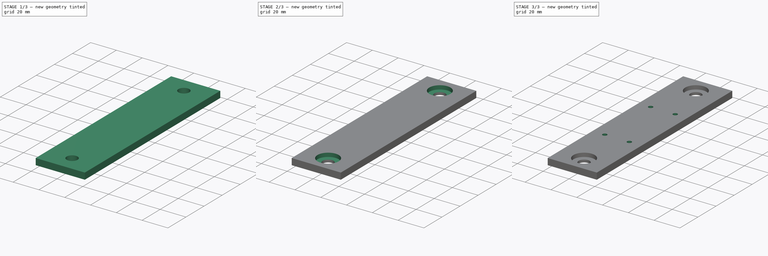
[diagram: build sequence overview — one tinted view per stage of 3, left to right]
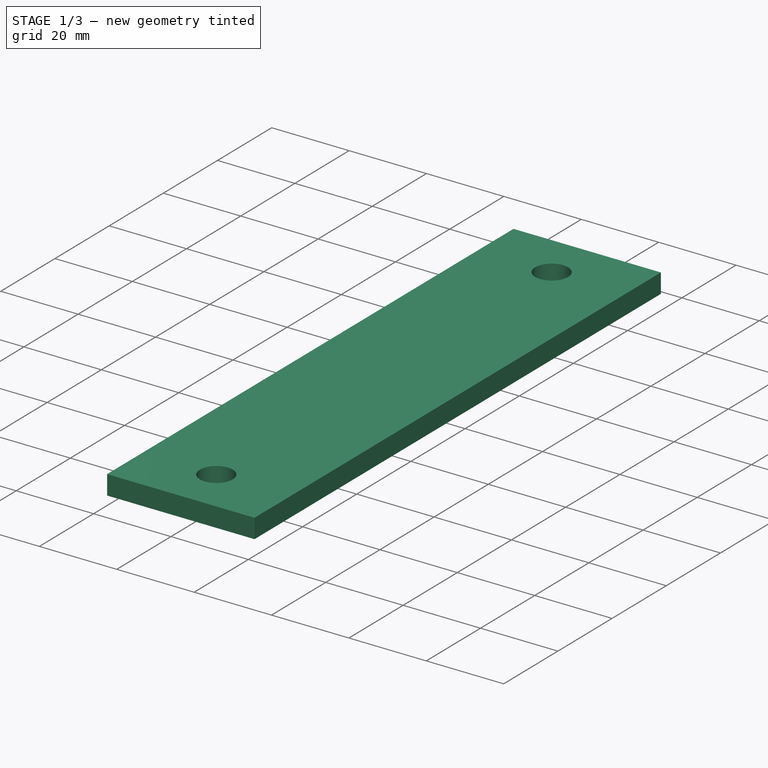
[diagram: stage 1 of 3 — iso view after this stage's code; geometry added in this stage tinted green]
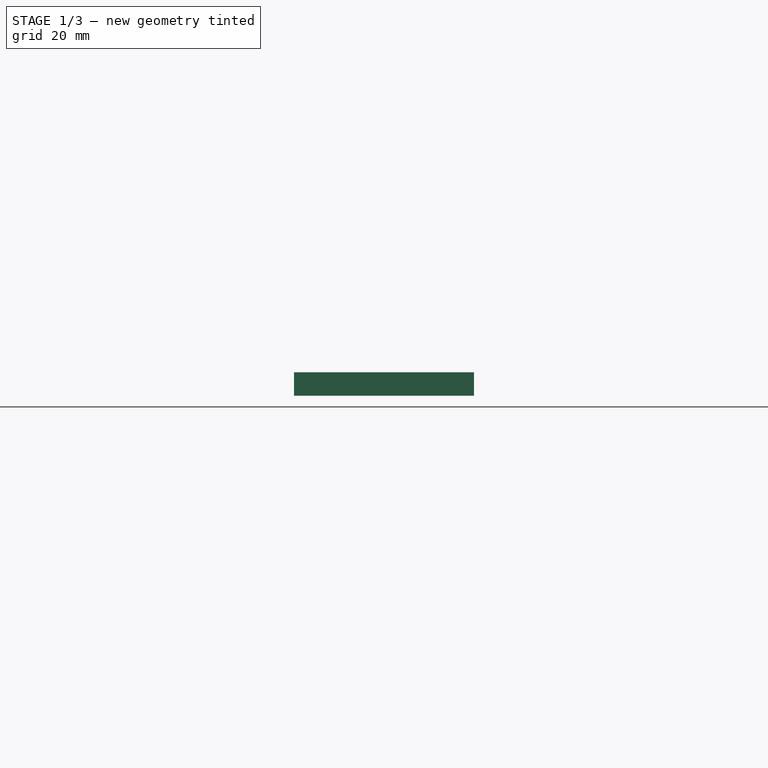
[diagram: stage 1 of 3 — front view after this stage's code; geometry added in this stage tinted green]
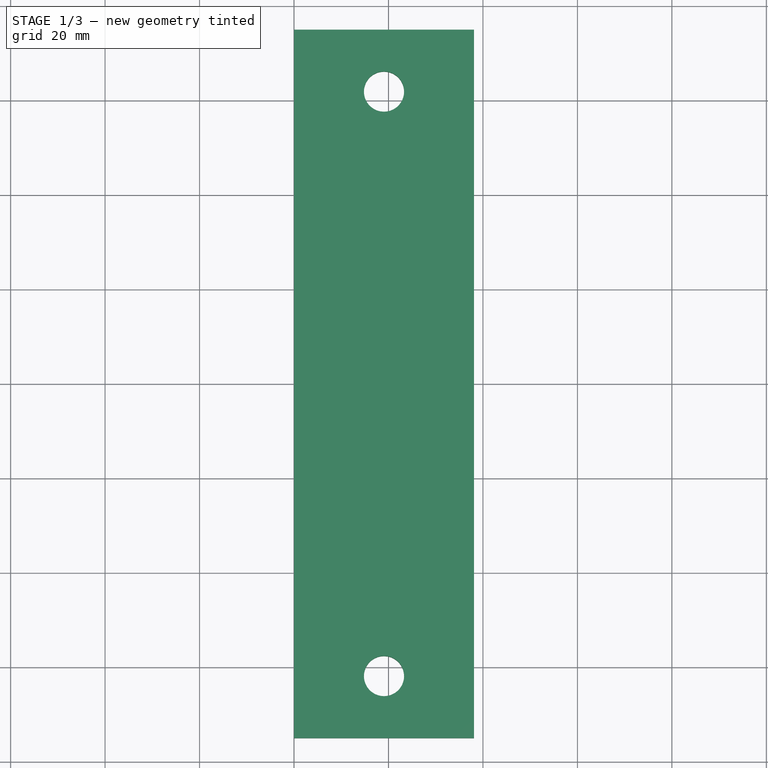
[diagram: stage 1 of 3 — top view after this stage's code; geometry added in this stage tinted green]
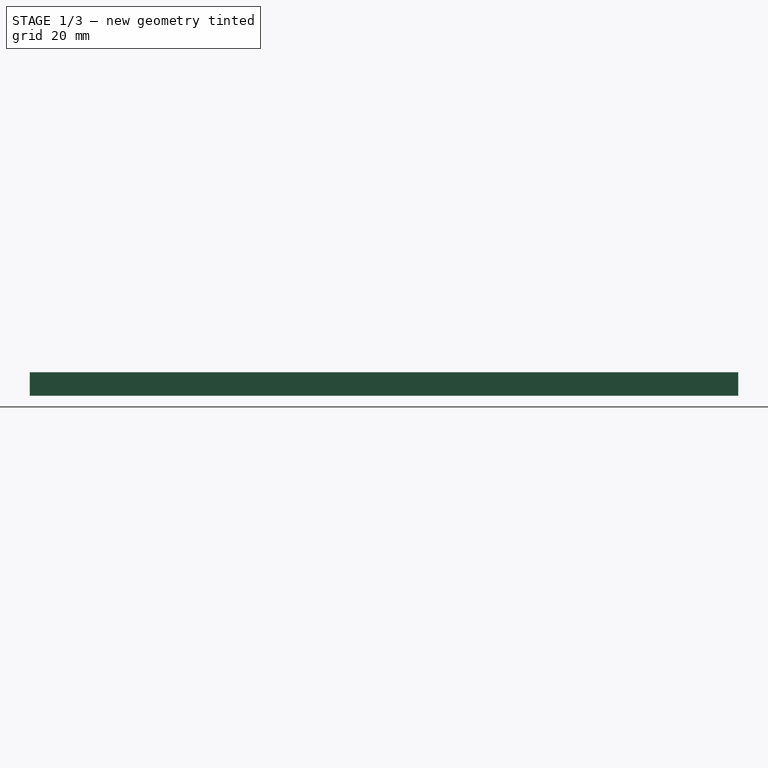
[diagram: stage 1 of 3 — right view after this stage's code; geometry added in this stage tinted green]
FCSTD DOCUMENT  (FreeCAD 0.18R)
Label: x-mount-base
License: All rights reserved
LicenseURL: http://en.wikipedia.org/wiki/All_rights_reserved
objects: Sketcher::SketchObject×5, PartDesign::Pocket×4, PartDesign::Pad×1, PartDesign::Body×1
note: 16 computed .brp shape members not serialized (recipe doc carries the construction recipe); baked Part::Feature solids carry a one-line shape summary decoded from their .brp

FEATURE [Sketcher::SketchObject] Sketch019
  MapMode = 5
  Support = -> [XY_Plane001]
  sketch-geometry (4):
    g0: Circle CenterX=9.525 CenterY=25.4 CenterZ=0 NormalX=0 NormalY=0 NormalZ=1 AngleXU=0 Radius=2.925
    g1: Circle CenterX=28.575 CenterY=25.4 CenterZ=0 NormalX=0 NormalY=0 NormalZ=1 AngleXU=0 Radius=2.925
    g2: Circle CenterX=9.525 CenterY=-25.4 CenterZ=0 NormalX=0 NormalY=0 NormalZ=1 AngleXU=0 Radius=2.925
    g3: Circle CenterX=28.575 CenterY=-25.4 CenterZ=0 NormalX=0 NormalY=0 NormalZ=1 AngleXU=0 Radius=2.925
  constraints (12):
    c: Diameter(g0) = 5.85
    c: Equal(g1,g0)
    c: Equal(g2,g0)
    c: Equal(g3,g0)
    c: DistanceY(g0,g1) = 0
    c: DistanceY(g2,g3) = 0
    c: DistanceX(g2,g0) = 0
    c: DistanceX(g3,g1) = 0
    c: DistanceY(g-1,g0) = 25.4
    c: DistanceY(g2,g-1) = 25.4
    c: DistanceX(g-1,g0) = 9.525
    c: DistanceX(g-1,g1) = 28.575
FEATURE [Sketcher::SketchObject] Sketch018
  MapMode = 5
  Support = -> [XY_Plane001]
  sketch-geometry (4):
    g0: Circle CenterX=9.525 CenterY=25.4 CenterZ=0 NormalX=0 NormalY=0 NormalZ=1 AngleXU=0 Radius=1.7
    g1: Circle CenterX=28.575 CenterY=25.4 CenterZ=0 NormalX=0 NormalY=0 NormalZ=1 AngleXU=0 Radius=1.7
    g2: Circle CenterX=9.525 CenterY=-25.4 CenterZ=0 NormalX=0 NormalY=0 NormalZ=1 AngleXU=0 Radius=1.7
    g3: Circle CenterX=28.575 CenterY=-25.4 CenterZ=0 NormalX=0 NormalY=0 NormalZ=1 AngleXU=0 Radius=1.7
  constraints (12):
    c: Diameter(g0) = 3.4
    c: Equal(g1,g0)
    c: Equal(g3,g0)
    c: Equal(g2,g0)
    c: DistanceY(g0,g1) = 0
    c: DistanceY(g2,g3) = 0
    c: DistanceX(g2,g0) = 0
    c: DistanceX(g3,g1) = 0
    c: DistanceX(g-1,g0) = 9.525
    c: DistanceX(g-1,g1) = 28.575
    c: DistanceY(g-1,g0) = 25.4
    c: DistanceY(g2,g-1) = 25.4
FEATURE [Sketcher::SketchObject] Sketch016
  MapMode = 5
  Support = -> [XY_Plane001]
  sketch-geometry (2):
    g0: Circle CenterX=19.05 CenterY=61.875 CenterZ=0 NormalX=0 NormalY=0 NormalZ=1 AngleXU=0 Radius=4.25
    g1: Circle CenterX=19.05 CenterY=-61.875 CenterZ=0 NormalX=0 NormalY=0 NormalZ=1 AngleXU=0 Radius=4.25
  constraints (6):
    c: DistanceX(g1,g0) = 0
    c: DistanceY(g-1,g0) = 61.875
    c: Radius(g0) = 4.25
    c: Equal(g1,g0)
    c: DistanceY(g1,g-1) = 61.875
    c: DistanceX(g-1,g1) = 19.05
FEATURE [Sketcher::SketchObject] Sketch015
  AttachmentOffset = pos=(0,0,75) rot=(0,0,1;0rad)
  MapMode = 5
  Placement = pos=(0,-75,-1.67e-14) rot=(1,0,0;1.5708rad)
  Support = -> [XZ_Plane001]
  sketch-geometry (4):
    g0: LineSegment StartX=0 StartY=0 StartZ=0 EndX=38.1 EndY=0 EndZ=0
    g1: LineSegment StartX=0 StartY=5 StartZ=0 EndX=38.1 EndY=5 EndZ=0
    g2: LineSegment StartX=0 StartY=0 StartZ=0 EndX=0 EndY=5 EndZ=0
    g3: LineSegment StartX=38.1 StartY=0 StartZ=0 EndX=38.1 EndY=5 EndZ=0
  constraints (11):
    c: Coincident(g0,g-1)
    c: Horizontal(g0)
    c: DistanceX(g0,g0) = 38.1
    c: Horizontal(g1)
    c: Coincident(g2,g0)
    c: Coincident(g3,g0)
    c: Vertical(g3)
    c: Vertical(g2)
    c: DistanceY(g2,g2) = 5
    c: Coincident(g1,g2)
    c: Coincident(g1,g3)
FEATURE [PartDesign::Pad] Pad002
  Length = 150
  Length2 = 100
  Placement = pos=(0,0,0) rot=(1,0,0;1.5708rad)
  Profile = -> Sketch015
  Reversed = true
  Type = 0
FEATURE [PartDesign::Pocket] Pocket004
  BaseFeature = -> Pad002
  Length = 5
  Length2 = 100
  Placement = pos=(0,0,0) rot=(1,0,0;1.5708rad)
  Profile = -> Sketch016
  Reversed = true
  Type = 1
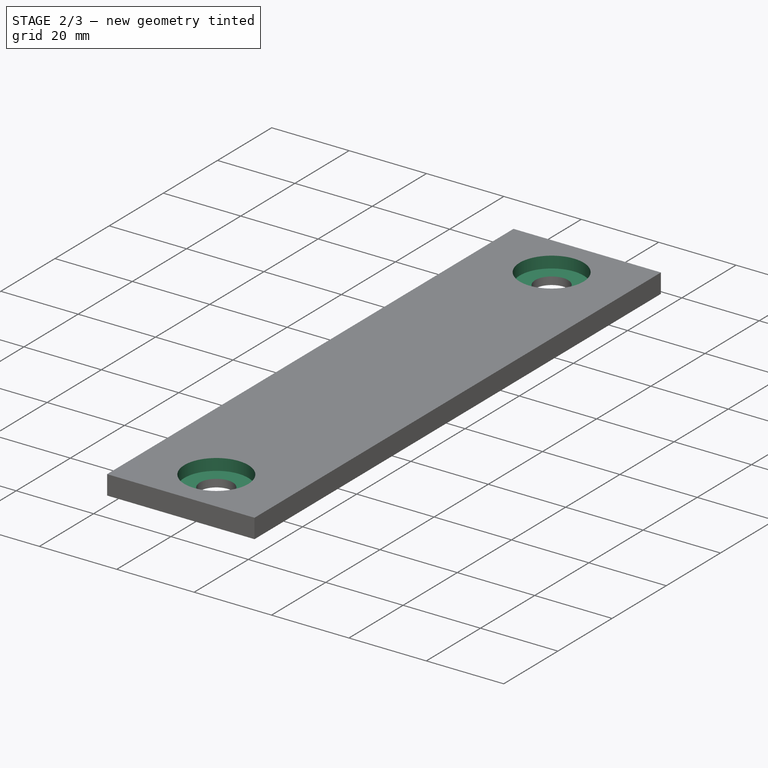
[diagram: stage 2 of 3 — iso view after this stage's code; geometry added in this stage tinted green]
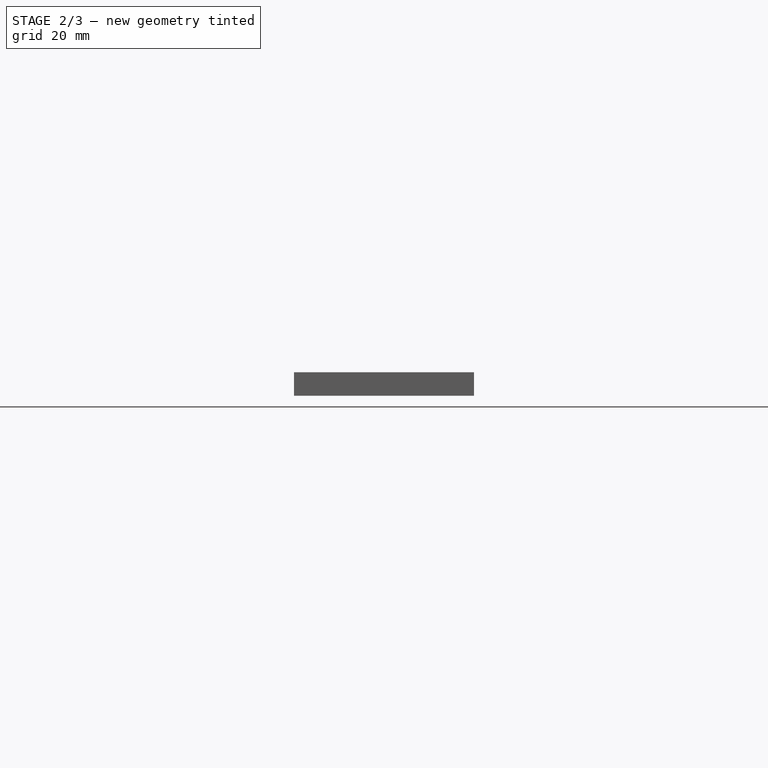
[diagram: stage 2 of 3 — front view after this stage's code; geometry added in this stage tinted green]
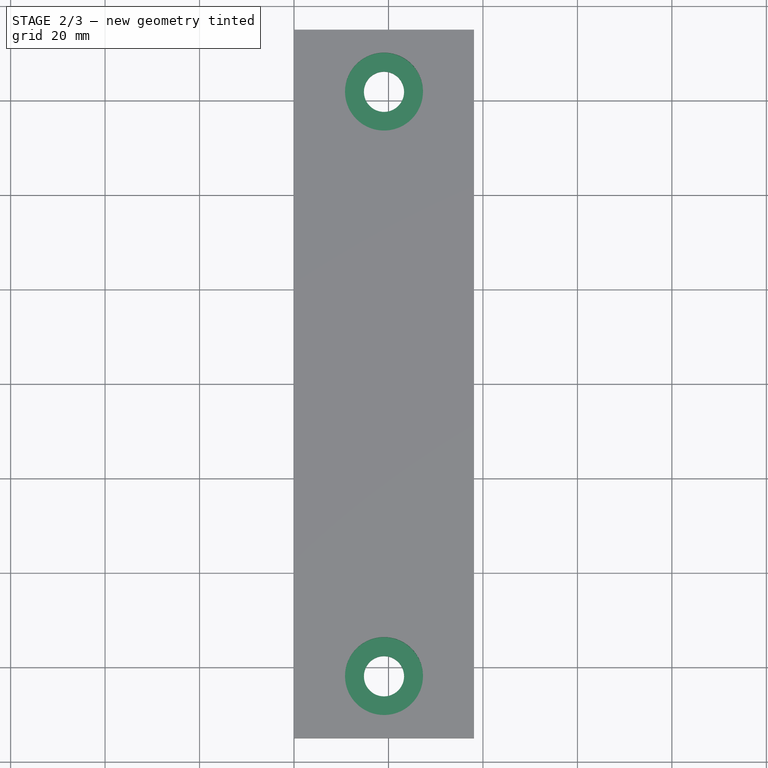
[diagram: stage 2 of 3 — top view after this stage's code; geometry added in this stage tinted green]
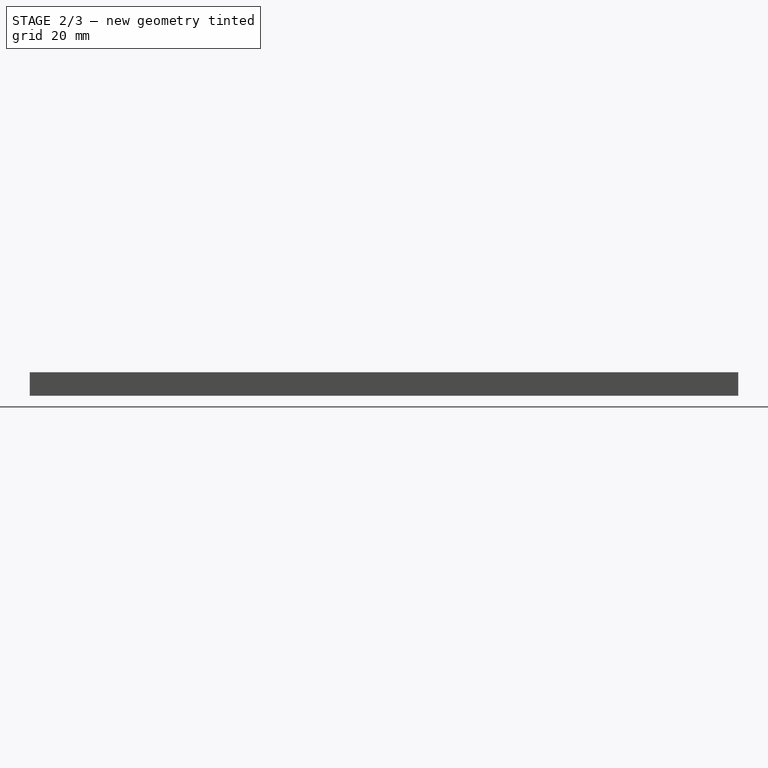
[diagram: stage 2 of 3 — right view after this stage's code; geometry added in this stage tinted green]
FEATURE [Sketcher::SketchObject] Sketch017
  AttachmentOffset = pos=(0,0,5) rot=(0,0,1;0rad)
  MapMode = 5
  Placement = pos=(0,0,5) rot=(0,0,1;0rad)
  Support = -> [XY_Plane001]
  sketch-geometry (2):
    g0: Circle CenterX=19.05 CenterY=61.875 CenterZ=0 NormalX=0 NormalY=0 NormalZ=1 AngleXU=0 Radius=8.25
    g1: Circle CenterX=19.05 CenterY=-61.875 CenterZ=0 NormalX=0 NormalY=0 NormalZ=1 AngleXU=0 Radius=8.25
  constraints (6):
    c: DistanceX(g1,g0) = 0
    c: Radius(g0) = 8.25
    c: DistanceX(g-1,g0) = 19.05
    c: DistanceY(g-1,g0) = 61.875
    c: DistanceY(g1,g-1) = 61.875
    c: Equal(g1,g0)
FEATURE [PartDesign::Pocket] Pocket005
  BaseFeature = -> Pocket004
  Length = 3
  Length2 = 100
  Placement = pos=(0,0,0) rot=(1,0,0;1.5708rad)
  Profile = -> Sketch017
  Type = 0
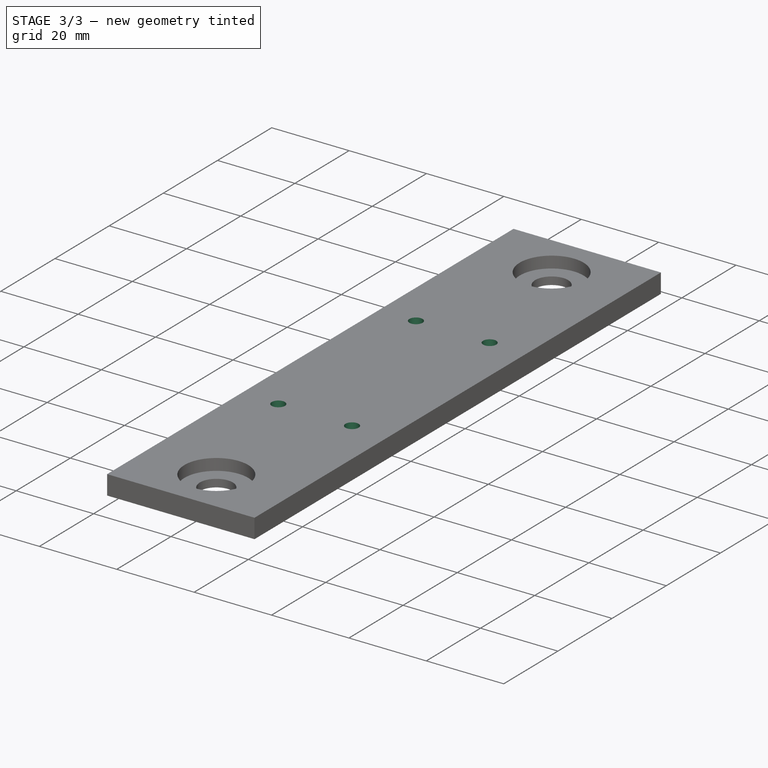
[diagram: stage 3 of 3 — iso view after this stage's code; geometry added in this stage tinted green]
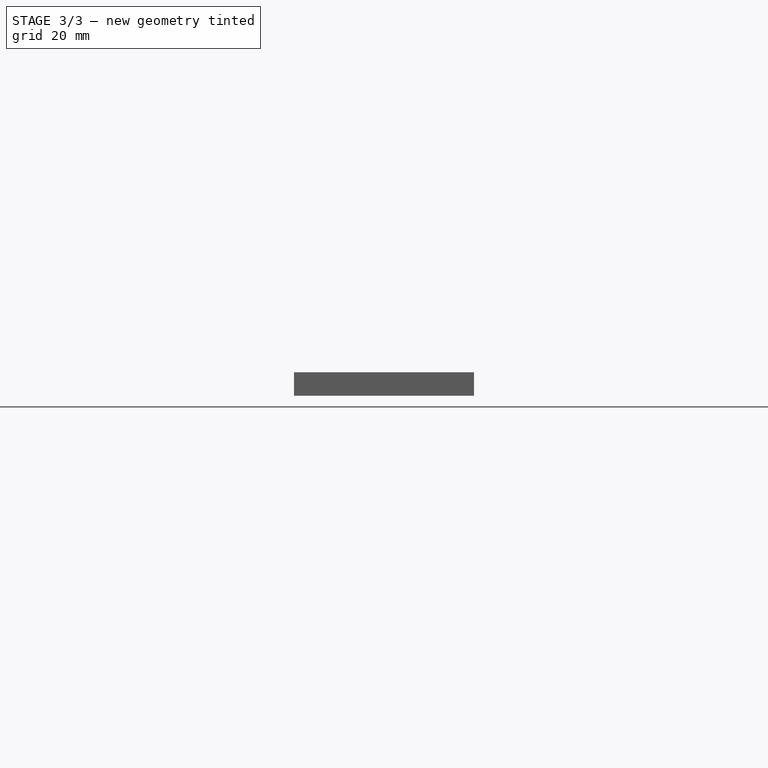
[diagram: stage 3 of 3 — front view after this stage's code; geometry added in this stage tinted green]
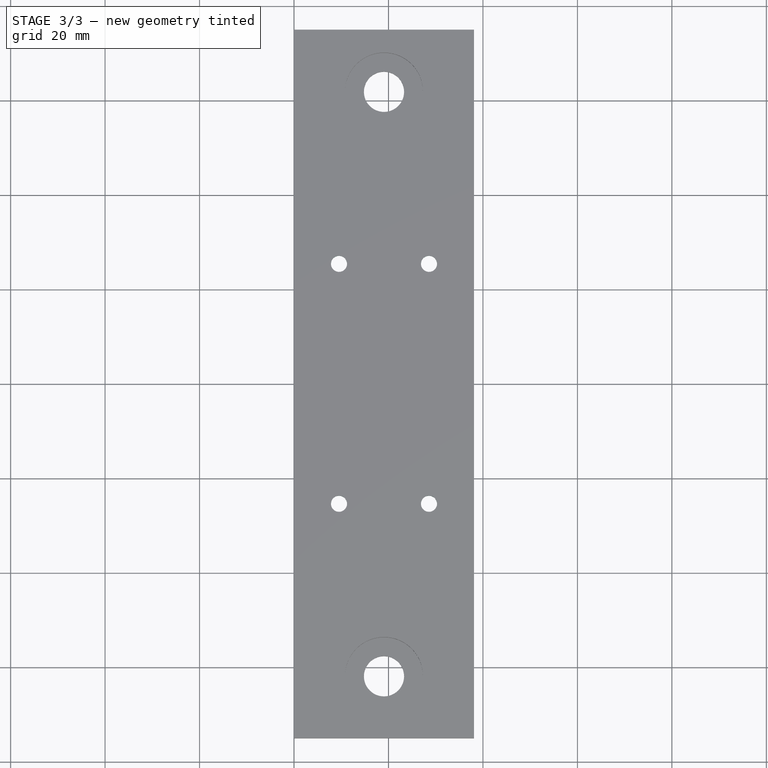
[diagram: stage 3 of 3 — top view after this stage's code; geometry added in this stage tinted green]
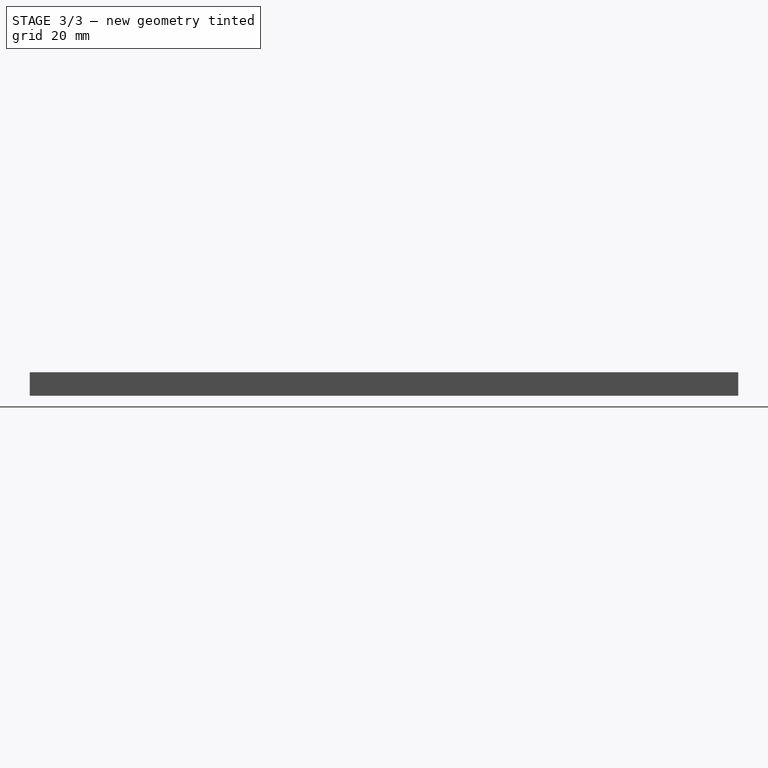
[diagram: stage 3 of 3 — right view after this stage's code; geometry added in this stage tinted green]
FEATURE [PartDesign::Pocket] Pocket006
  BaseFeature = -> Pocket005
  Length = 5
  Length2 = 100
  Placement = pos=(0,0,0) rot=(1,0,0;1.5708rad)
  Profile = -> Sketch018
  Reversed = true
  Type = 1
FEATURE [PartDesign::Pocket] Pocket007
  BaseFeature = -> Pocket006
  Length = 3.5
  Length2 = 100
  Placement = pos=(0,0,0) rot=(1,0,0;1.5708rad)
  Profile = -> Sketch019
  Reversed = true
  Type = 0
FEATURE [PartDesign::Body] Body001  label="x-mount-base"
  Group = -> [Sketch015,Pad002,Sketch016,Pocket004,Sketch017,Pocket005,Sketch018,Pocket006,Sketch019,Pocket007]
  Origin = -> Origin001
  Placement = pos=(0,0,-27) rot=(0,0,1;0rad)
  Tip = -> Pocket007
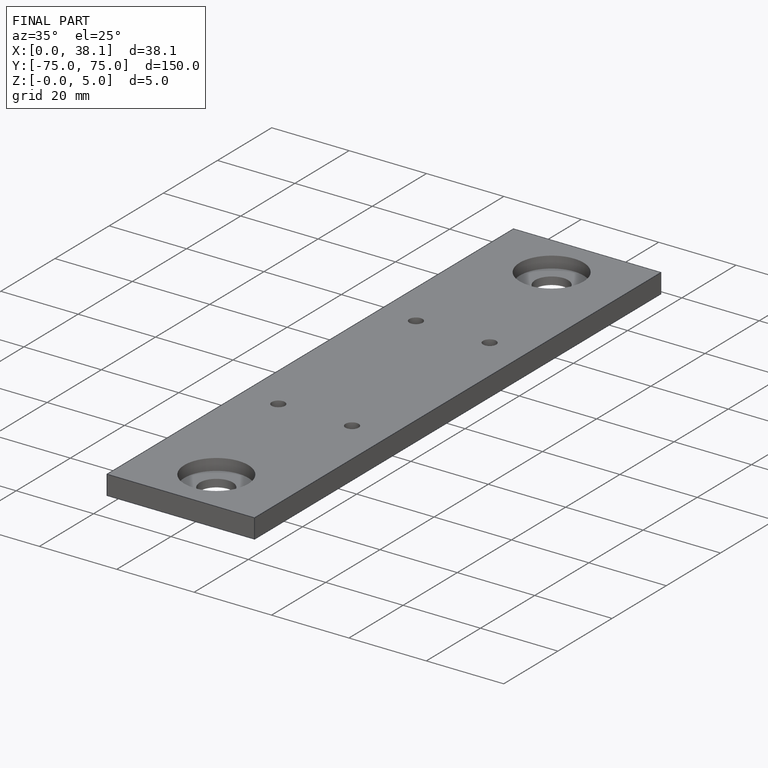
[diagram: finished part — iso view with bounding-box wireframe]
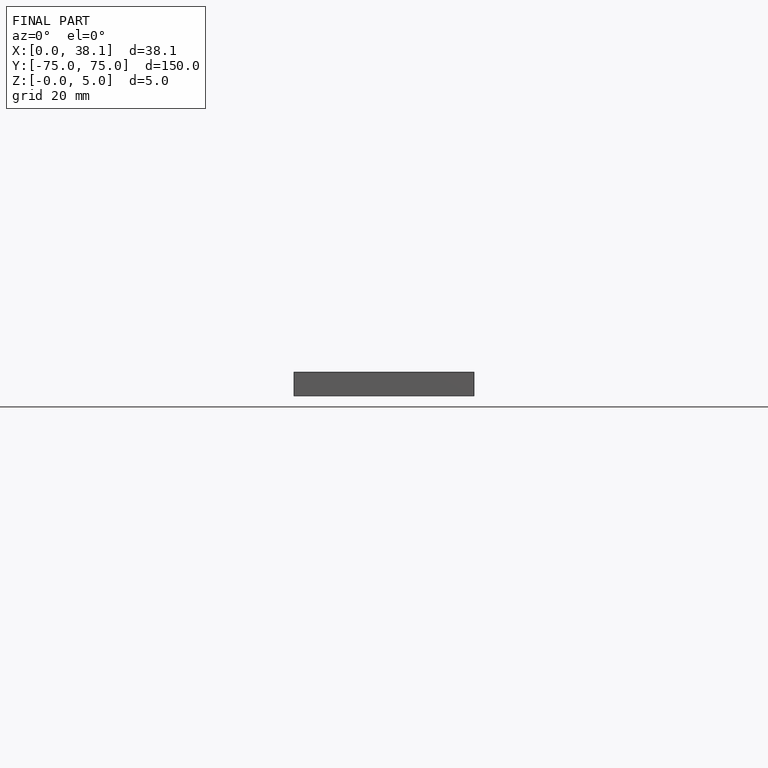
[diagram: finished part — front view with bounding-box wireframe]
